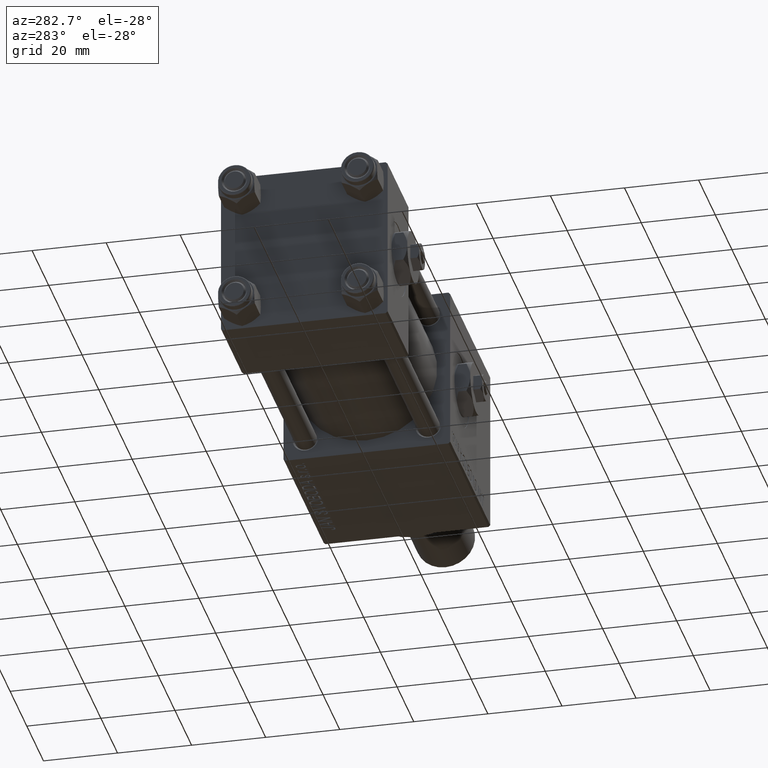
[diagram: clean part render]
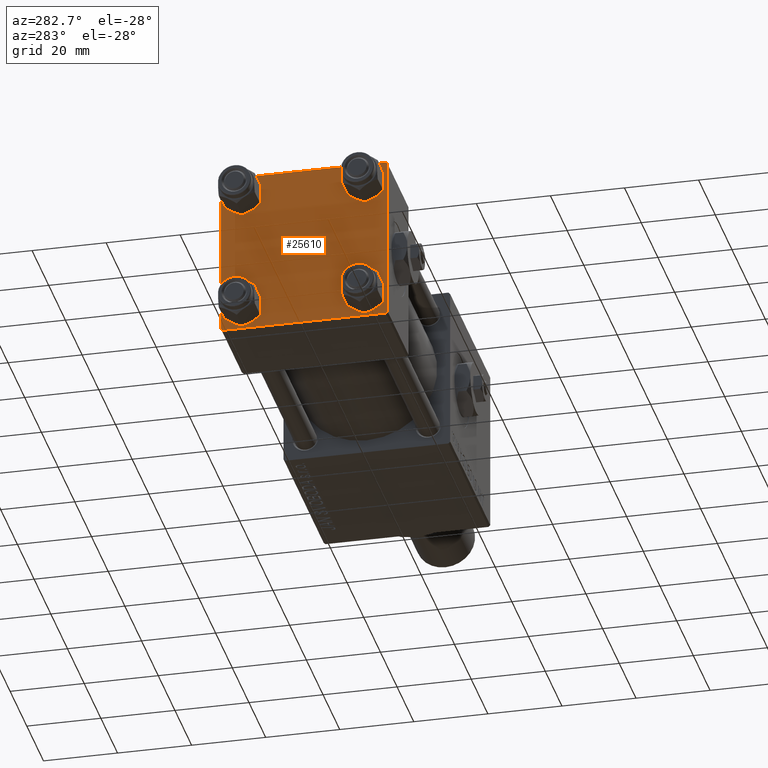
[diagram: same view with one face highlighted and labeled with its STEP entity id]
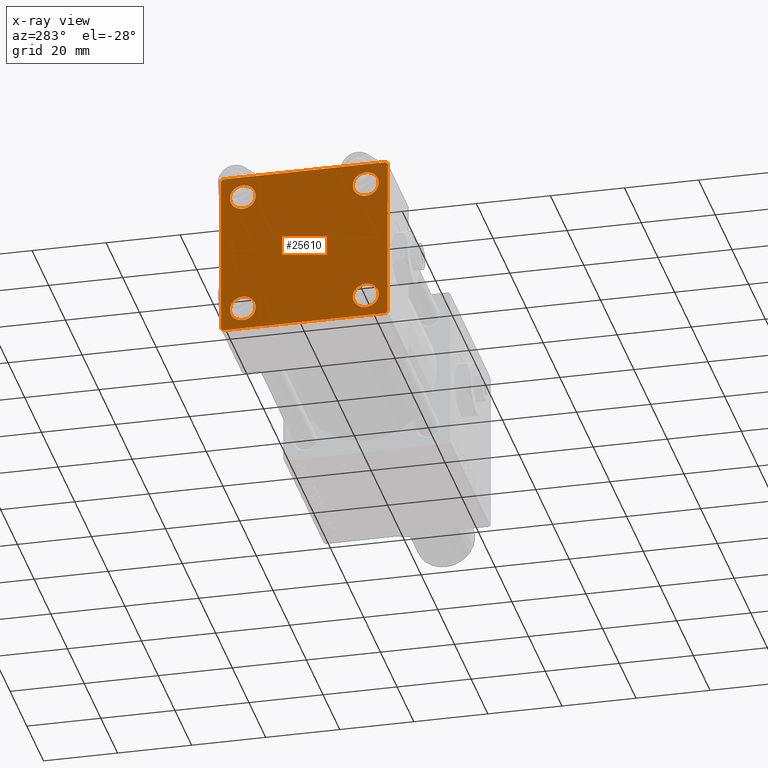
[diagram: x-ray of the same camera — body ghosted, the highlighted face saturated]
A machine part, auxiliary view. The second image highlights one B-rep face of the part: STEP entity #25610.
The next image is the same camera in x-ray: the body ghosted, the highlighted face saturated — about 0% of this face is hidden behind the body in this view.
In plain terms, the highlighted planar face has unit normal (-1, 0, 0).
Its self-contained STEP definition (entity closure, byte-faithful):
#365 = DIRECTION ( 'NONE',  ( 0.000000000000000000, 0.000000000000000000, 1.000000000000000000 ) ) ;
#482 = CARTESIAN_POINT ( 'NONE',  ( 0.000000000000000000, -22.25000000000014566, -22.24999999999984013 ) ) ;
#551 = AXIS2_PLACEMENT_3D ( 'NONE', #19007, #30725, #35503 ) ;
#785 = DIRECTION ( 'NONE',  ( 0.000000000000000000, 0.000000000000000000, 1.000000000000000000 ) ) ;
#1074 = EDGE_CURVE ( 'NONE', #3544, #7202, #33716, .T. ) ;
#1381 = ORIENTED_EDGE ( 'NONE', *, *, #36302, .T. ) ;
#1382 = DIRECTION ( 'NONE',  ( -1.000000000000000000, 0.000000000000000000, -0.000000000000000000 ) ) ;
#2405 = LINE ( 'NONE', #41372, #40530 ) ;
#2424 = DIRECTION ( 'NONE',  ( 0.000000000000000000, 0.000000000000000000, -1.000000000000000000 ) ) ;
#2487 = AXIS2_PLACEMENT_3D ( 'NONE', #52388, #16177, #8199 ) ;
#3104 = AXIS2_PLACEMENT_3D ( 'NONE', #29589, #1382, #21611 ) ;
#3401 = EDGE_CURVE ( 'NONE', #4742, #38232, #38857, .T. ) ;
#3544 = VERTEX_POINT ( 'NONE', #39915 ) ;
#3806 = FACE_OUTER_BOUND ( 'NONE', #45177, .T. ) ;
#3942 = CARTESIAN_POINT ( 'NONE',  ( 0.000000000000000000, -22.50000000000000000, 22.00000000000000000 ) ) ;
#4046 = EDGE_CURVE ( 'NONE', #50405, #20675, #31987, .T. ) ;
#4301 = EDGE_CURVE ( 'NONE', #12108, #4742, #2405, .T. ) ;
#4717 = CARTESIAN_POINT ( 'NONE',  ( 0.000000000000000000, 22.50000000000000000, -21.99999999999996803 ) ) ;
#4742 = VERTEX_POINT ( 'NONE', #4717 ) ;
#5268 = ORIENTED_EDGE ( 'NONE', *, *, #10359, .T. ) ;
#6619 = AXIS2_PLACEMENT_3D ( 'NONE', #23576, #23308, #31019 ) ;
#6703 = ORIENTED_EDGE ( 'NONE', *, *, #52299, .T. ) ;
#6950 = CIRCLE ( 'NONE', #14595, 3.499999999999996003 ) ;
#7202 = VERTEX_POINT ( 'NONE', #33708 ) ;
#7796 = FACE_BOUND ( 'NONE', #36068, .T. ) ;
#8111 = EDGE_CURVE ( 'NONE', #20675, #50405, #39795, .T. ) ;
#8199 = DIRECTION ( 'NONE',  ( 0.000000000000000000, 0.000000000000000000, 1.000000000000000000 ) ) ;
#8504 = CIRCLE ( 'NONE', #15283, 3.499999999999996003 ) ;
#8879 = DIRECTION ( 'NONE',  ( 1.000000000000000000, -0.000000000000000000, 0.000000000000000000 ) ) ;
#9169 = ORIENTED_EDGE ( 'NONE', *, *, #51541, .T. ) ;
#9345 = CIRCLE ( 'NONE', #49294, 3.499999999999996003 ) ;
#10359 = EDGE_CURVE ( 'NONE', #39430, #15973, #42459, .T. ) ;
#10411 = VERTEX_POINT ( 'NONE', #3942 ) ;
#10676 = CARTESIAN_POINT ( 'NONE',  ( 0.000000000000000000, -16.59999999999999076, -13.10000000000001030 ) ) ;
#10718 = ORIENTED_EDGE ( 'NONE', *, *, #33428, .F. ) ;
#12064 = CARTESIAN_POINT ( 'NONE',  ( 0.000000000000000000, -21.99999999999997158, -22.50000000000000711 ) ) ;
#12108 = VERTEX_POINT ( 'NONE', #37369 ) ;
#13414 = VECTOR ( 'NONE', #2424, 1000.000000000000000 ) ;
#13634 = PLANE ( 'NONE',  #3104 ) ;
#14123 = ORIENTED_EDGE ( 'NONE', *, *, #42921, .T. ) ;
#14266 = VECTOR ( 'NONE', #50832, 1000.000000000000000 ) ;
#14595 = AXIS2_PLACEMENT_3D ( 'NONE', #25001, #23945, #785 ) ;
#15283 = AXIS2_PLACEMENT_3D ( 'NONE', #24975, #49482, #40690 ) ;
#15973 = VERTEX_POINT ( 'NONE', #22067 ) ;
#16177 = DIRECTION ( 'NONE',  ( 1.000000000000000000, -0.000000000000000000, 0.000000000000000000 ) ) ;
#16737 = AXIS2_PLACEMENT_3D ( 'NONE', #50624, #50377, #26132 ) ;
#17900 = CARTESIAN_POINT ( 'NONE',  ( -0.000000000000000000, -22.24999999999984013, 22.25000000000015277 ) ) ;
#18595 = EDGE_LOOP ( 'NONE', ( #45050, #20743 ) ) ;
#19007 = CARTESIAN_POINT ( 'NONE',  ( 0.000000000000000000, 16.59999999999999787, 16.60000000000000497 ) ) ;
#19095 = CARTESIAN_POINT ( 'NONE',  ( 0.000000000000000000, 16.59999999999999787, -13.10000000000000675 ) ) ;
#19255 = ORIENTED_EDGE ( 'NONE', *, *, #1074, .T. ) ;
#19590 = VECTOR ( 'NONE', #37886, 999.9999999999998863 ) ;
#19768 = FACE_BOUND ( 'NONE', #25804, .T. ) ;
#20675 = VERTEX_POINT ( 'NONE', #50182 ) ;
#20743 = ORIENTED_EDGE ( 'NONE', *, *, #4046, .T. ) ;
#21611 = DIRECTION ( 'NONE',  ( -0.000000000000000000, 0.000000000000000000, 1.000000000000000000 ) ) ;
#21656 = DIRECTION ( 'NONE',  ( 0.000000000000000000, 0.000000000000000000, -1.000000000000000000 ) ) ;
#22067 = CARTESIAN_POINT ( 'NONE',  ( 0.000000000000000000, -16.59999999999999076, -20.10000000000000497 ) ) ;
#23308 = DIRECTION ( 'NONE',  ( 1.000000000000000000, -0.000000000000000000, 0.000000000000000000 ) ) ;
#23419 = VERTEX_POINT ( 'NONE', #39371 ) ;
#23576 = CARTESIAN_POINT ( 'NONE',  ( 0.000000000000000000, -16.59999999999999076, -16.60000000000000853 ) ) ;
#23945 = DIRECTION ( 'NONE',  ( 1.000000000000000000, -0.000000000000000000, 0.000000000000000000 ) ) ;
#24036 = FACE_BOUND ( 'NONE', #18595, .T. ) ;
#24296 = CARTESIAN_POINT ( 'NONE',  ( 0.000000000000000000, 22.50000000000000000, -22.49999999999999645 ) ) ;
#24603 = ORIENTED_EDGE ( 'NONE', *, *, #30554, .F. ) ;
#24666 = LINE ( 'NONE', #17900, #19590 ) ;
#24975 = CARTESIAN_POINT ( 'NONE',  ( 0.000000000000000000, -16.59999999999999076, 16.60000000000000853 ) ) ;
#25001 = CARTESIAN_POINT ( 'NONE',  ( 0.000000000000000000, 16.59999999999999787, -16.60000000000000497 ) ) ;
#25133 = EDGE_CURVE ( 'NONE', #23419, #12108, #29446, .T. ) ;
#25225 = LINE ( 'NONE', #482, #33858 ) ;
#25233 = CARTESIAN_POINT ( 'NONE',  ( 0.000000000000000000, -21.99999999999997868, 22.50000000000000000 ) ) ;
#25379 = VECTOR ( 'NONE', #43377, 1000.000000000000000 ) ;
#25568 = CARTESIAN_POINT ( 'NONE',  ( 0.000000000000000000, 16.59999999999999787, 13.10000000000000675 ) ) ;
#25610 = ADVANCED_FACE ( 'NONE', ( #19768, #31997, #7796, #24036, #3806 ), #13634, .T. ) ;
#25708 = VERTEX_POINT ( 'NONE', #19095 ) ;
#25804 = EDGE_LOOP ( 'NONE', ( #1381, #19255 ) ) ;
#26132 = DIRECTION ( 'NONE',  ( 0.000000000000000000, 0.000000000000000000, 1.000000000000000000 ) ) ;
#29446 = LINE ( 'NONE', #49965, #44804 ) ;
#29589 = CARTESIAN_POINT ( 'NONE',  ( 0.000000000000000000, 0.000000000000000000, 0.000000000000000000 ) ) ;
#30383 = CARTESIAN_POINT ( 'NONE',  ( 0.000000000000000000, -22.50000000000000000, -21.99999999999997158 ) ) ;
#30448 = ORIENTED_EDGE ( 'NONE', *, *, #31681, .T. ) ;
#30554 = EDGE_CURVE ( 'NONE', #10411, #37706, #38618, .T. ) ;
#30609 = CARTESIAN_POINT ( 'NONE',  ( 0.000000000000000000, -22.50000000000000000, 22.50000000000000000 ) ) ;
#30725 = DIRECTION ( 'NONE',  ( 1.000000000000000000, -0.000000000000000000, 0.000000000000000000 ) ) ;
#31019 = DIRECTION ( 'NONE',  ( 0.000000000000000000, 0.000000000000000000, 1.000000000000000000 ) ) ;
#31103 = CARTESIAN_POINT ( 'NONE',  ( 0.000000000000000000, 22.50000000000000000, 22.50000000000000355 ) ) ;
#31681 = EDGE_CURVE ( 'NONE', #38232, #39247, #52252, .T. ) ;
#31987 = CIRCLE ( 'NONE', #551, 3.499999999999996003 ) ;
#31997 = FACE_BOUND ( 'NONE', #47789, .T. ) ;
#32100 = EDGE_CURVE ( 'NONE', #15973, #39430, #32113, .T. ) ;
#32113 = CIRCLE ( 'NONE', #6619, 3.499999999999996003 ) ;
#32271 = DIRECTION ( 'NONE',  ( 0.000000000000000000, -1.000000000000000000, -2.312964634635742957E-16 ) ) ;
#32964 = VECTOR ( 'NONE', #32271, 1000.000000000000000 ) ;
#33428 = EDGE_CURVE ( 'NONE', #23419, #36324, #34838, .T. ) ;
#33708 = CARTESIAN_POINT ( 'NONE',  ( 0.000000000000000000, -16.59999999999999076, 20.10000000000000853 ) ) ;
#33716 = CIRCLE ( 'NONE', #16737, 3.499999999999996003 ) ;
#33810 = CARTESIAN_POINT ( 'NONE',  ( 0.000000000000000000, 22.25000000000014566, -22.24999999999984013 ) ) ;
#33858 = VECTOR ( 'NONE', #44664, 1000.000000000000000 ) ;
#34838 = LINE ( 'NONE', #31103, #25379 ) ;
#34958 = CARTESIAN_POINT ( 'NONE',  ( 0.000000000000000000, 16.59999999999999787, 16.60000000000000497 ) ) ;
#35503 = DIRECTION ( 'NONE',  ( 0.000000000000000000, 0.000000000000000000, 1.000000000000000000 ) ) ;
#36068 = EDGE_LOOP ( 'NONE', ( #9169, #51942 ) ) ;
#36302 = EDGE_CURVE ( 'NONE', #7202, #3544, #8504, .T. ) ;
#36324 = VERTEX_POINT ( 'NONE', #25233 ) ;
#36818 = EDGE_CURVE ( 'NONE', #50549, #25708, #9345, .T. ) ;
#37369 = CARTESIAN_POINT ( 'NONE',  ( 0.000000000000000000, 22.50000000000000000, 21.99999999999999645 ) ) ;
#37706 = VERTEX_POINT ( 'NONE', #30383 ) ;
#37738 = ORIENTED_EDGE ( 'NONE', *, *, #25133, .T. ) ;
#37886 = DIRECTION ( 'NONE',  ( -0.000000000000000000, 0.7071067811865525687, 0.7071067811865425767 ) ) ;
#38232 = VERTEX_POINT ( 'NONE', #51265 ) ;
#38598 = ORIENTED_EDGE ( 'NONE', *, *, #3401, .T. ) ;
#38618 = LINE ( 'NONE', #30609, #13414 ) ;
#38857 = LINE ( 'NONE', #33810, #14266 ) ;
#39247 = VERTEX_POINT ( 'NONE', #12064 ) ;
#39371 = CARTESIAN_POINT ( 'NONE',  ( 0.000000000000000000, 21.99999999999999289, 22.50000000000000355 ) ) ;
#39430 = VERTEX_POINT ( 'NONE', #10676 ) ;
#39795 = CIRCLE ( 'NONE', #51717, 3.499999999999996003 ) ;
#39915 = CARTESIAN_POINT ( 'NONE',  ( 0.000000000000000000, -16.59999999999999076, 13.10000000000001030 ) ) ;
#40530 = VECTOR ( 'NONE', #21656, 1000.000000000000000 ) ;
#40557 = CARTESIAN_POINT ( 'NONE',  ( 0.000000000000000000, 16.59999999999999787, -16.60000000000000497 ) ) ;
#40690 = DIRECTION ( 'NONE',  ( 0.000000000000000000, 0.000000000000000000, 1.000000000000000000 ) ) ;
#41372 = CARTESIAN_POINT ( 'NONE',  ( 0.000000000000000000, 22.50000000000000000, 22.50000000000000355 ) ) ;
#42459 = CIRCLE ( 'NONE', #2487, 3.499999999999996003 ) ;
#42921 = EDGE_CURVE ( 'NONE', #39247, #37706, #25225, .T. ) ;
#43377 = DIRECTION ( 'NONE',  ( 0.000000000000000000, -1.000000000000000000, -7.709882115452476934E-17 ) ) ;
#44434 = CARTESIAN_POINT ( 'NONE',  ( 0.000000000000000000, 16.59999999999999787, -20.10000000000000142 ) ) ;
#44664 = DIRECTION ( 'NONE',  ( 0.000000000000000000, -0.7071067811865426878, 0.7071067811865524577 ) ) ;
#44804 = VECTOR ( 'NONE', #45714, 1000.000000000000114 ) ;
#45050 = ORIENTED_EDGE ( 'NONE', *, *, #8111, .T. ) ;
#45177 = EDGE_LOOP ( 'NONE', ( #50344, #38598, #30448, #14123, #24603, #6703, #10718, #37738 ) ) ;
#45714 = DIRECTION ( 'NONE',  ( 0.000000000000000000, 0.7071067811865474617, -0.7071067811865474617 ) ) ;
#46194 = DIRECTION ( 'NONE',  ( 0.000000000000000000, 0.000000000000000000, 1.000000000000000000 ) ) ;
#46372 = ORIENTED_EDGE ( 'NONE', *, *, #32100, .T. ) ;
#47789 = EDGE_LOOP ( 'NONE', ( #5268, #46372 ) ) ;
#49294 = AXIS2_PLACEMENT_3D ( 'NONE', #40557, #8879, #365 ) ;
#49482 = DIRECTION ( 'NONE',  ( 1.000000000000000000, -0.000000000000000000, 0.000000000000000000 ) ) ;
#49965 = CARTESIAN_POINT ( 'NONE',  ( 0.000000000000000000, 22.24999999999999645, 22.24999999999999645 ) ) ;
#50182 = CARTESIAN_POINT ( 'NONE',  ( 0.000000000000000000, 16.59999999999999787, 20.10000000000000142 ) ) ;
#50344 = ORIENTED_EDGE ( 'NONE', *, *, #4301, .T. ) ;
#50377 = DIRECTION ( 'NONE',  ( 1.000000000000000000, -0.000000000000000000, 0.000000000000000000 ) ) ;
#50405 = VERTEX_POINT ( 'NONE', #25568 ) ;
#50549 = VERTEX_POINT ( 'NONE', #44434 ) ;
#50624 = CARTESIAN_POINT ( 'NONE',  ( 0.000000000000000000, -16.59999999999999076, 16.60000000000000853 ) ) ;
#50832 = DIRECTION ( 'NONE',  ( -0.000000000000000000, -0.7071067811865426878, -0.7071067811865524577 ) ) ;
#51210 = DIRECTION ( 'NONE',  ( 1.000000000000000000, -0.000000000000000000, 0.000000000000000000 ) ) ;
#51265 = CARTESIAN_POINT ( 'NONE',  ( 0.000000000000000000, 21.99999999999999289, -22.49999999999999645 ) ) ;
#51541 = EDGE_CURVE ( 'NONE', #25708, #50549, #6950, .T. ) ;
#51717 = AXIS2_PLACEMENT_3D ( 'NONE', #34958, #51210, #46194 ) ;
#51942 = ORIENTED_EDGE ( 'NONE', *, *, #36818, .T. ) ;
#52252 = LINE ( 'NONE', #24296, #32964 ) ;
#52299 = EDGE_CURVE ( 'NONE', #10411, #36324, #24666, .T. ) ;
#52388 = CARTESIAN_POINT ( 'NONE',  ( 0.000000000000000000, -16.59999999999999076, -16.60000000000000853 ) ) ;